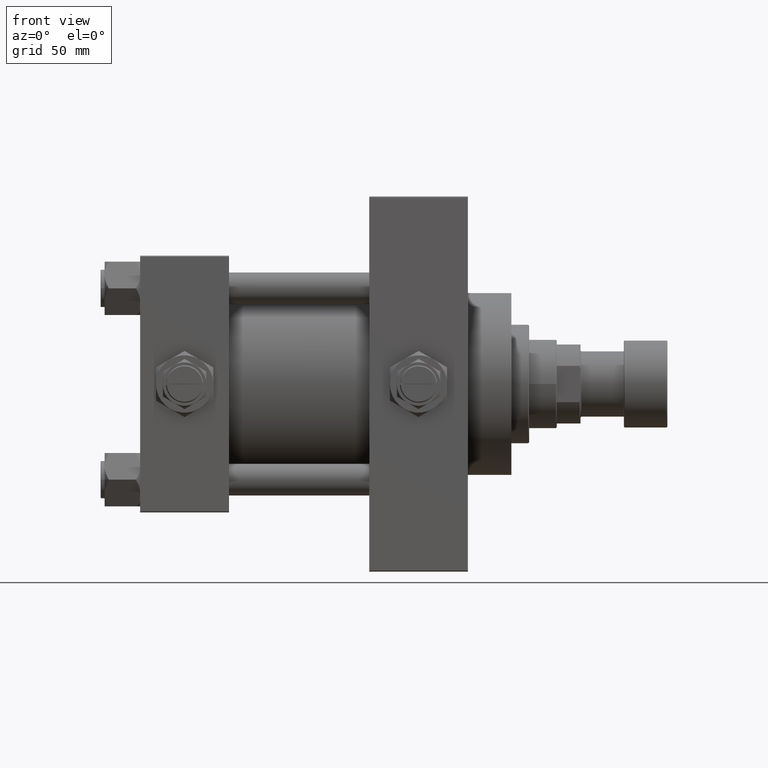
[diagram: clean part render]
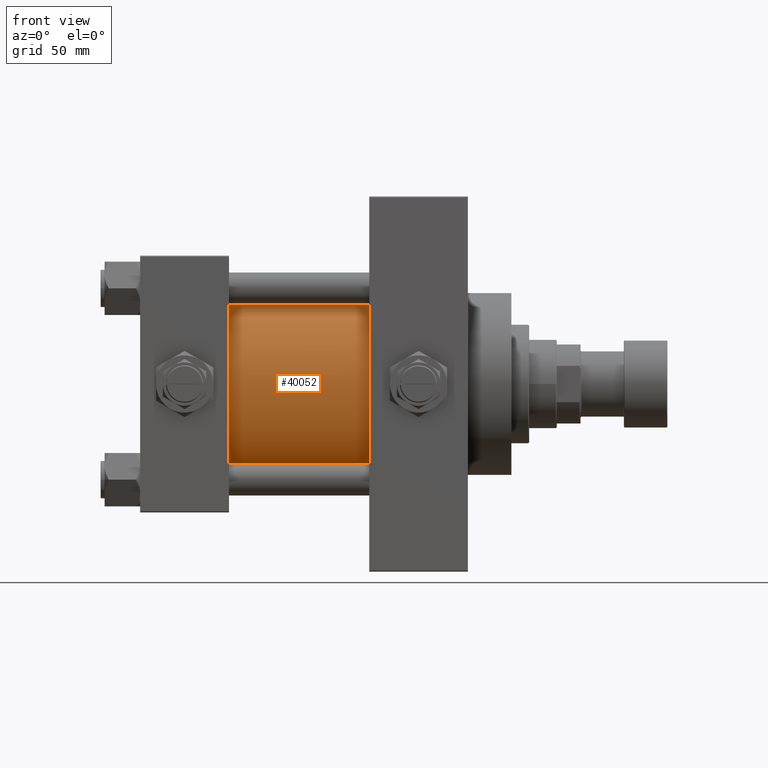
[diagram: same view with one face highlighted and labeled with its STEP entity id]
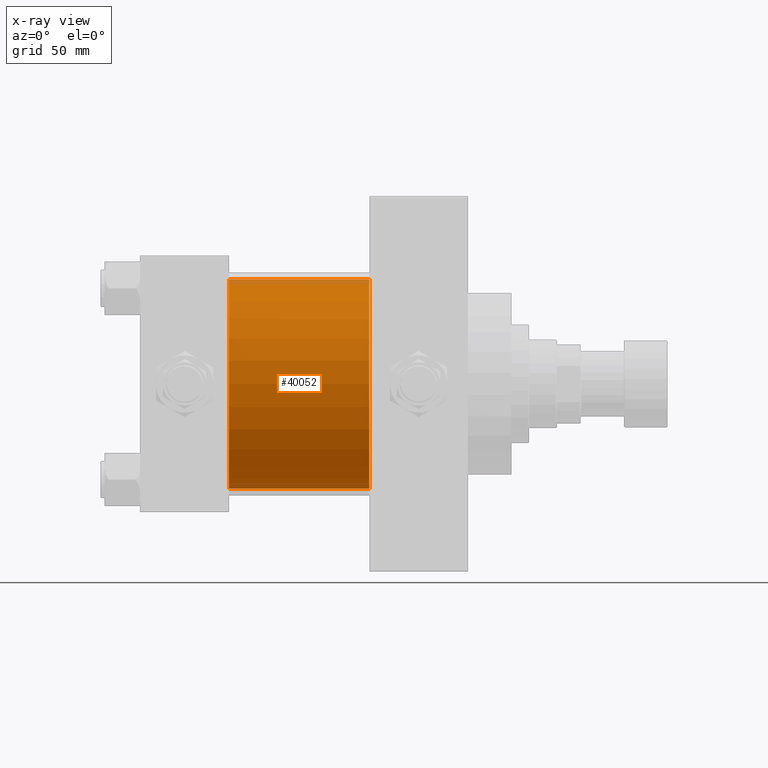
[diagram: x-ray of the same camera — body ghosted, the highlighted face saturated]
A machine part, front view. The second image highlights one B-rep face of the part: STEP entity #40052.
The next image is the same camera in x-ray: the body ghosted, the highlighted face saturated — about 5% of this face is hidden behind the body in this view.
In plain terms, the highlighted cylindrical surface (partial cylindrical patch) has radius 53 mm, axis along (-1, -0, -0).
Its self-contained STEP definition (entity closure, byte-faithful):
#1132 = ORIENTED_EDGE ( 'NONE', *, *, #16341, .F. ) ;
#4428 = DIRECTION ( 'NONE',  ( -1.000000000000000000, -0.000000000000000000, -0.000000000000000000 ) ) ;
#5711 = CIRCLE ( 'NONE', #16236, 53.00000000000000711 ) ;
#5794 = CYLINDRICAL_SURFACE ( 'NONE', #43803, 53.00000000000000711 ) ;
#6020 = CARTESIAN_POINT ( 'NONE',  ( 45.00000000000000000, 3.888542821515762466E-15, -53.00000000000000711 ) ) ;
#8147 = EDGE_CURVE ( 'NONE', #9688, #46931, #38721, .T. ) ;
#9100 = EDGE_CURVE ( 'NONE', #46931, #37026, #30275, .T. ) ;
#9109 = DIRECTION ( 'NONE',  ( 0.000000000000000000, 0.000000000000000000, 1.000000000000000000 ) ) ;
#9360 = CARTESIAN_POINT ( 'NONE',  ( 115.9999999999999858, -2.602085213965210642E-15, 0.000000000000000000 ) ) ;
#9688 = VERTEX_POINT ( 'NONE', #23234 ) ;
#10094 = VECTOR ( 'NONE', #47451, 1000.000000000000000 ) ;
#10581 = DIRECTION ( 'NONE',  ( 0.000000000000000000, 0.000000000000000000, -1.000000000000000000 ) ) ;
#10968 = DIRECTION ( 'NONE',  ( 1.000000000000000000, -0.000000000000000000, 0.000000000000000000 ) ) ;
#13660 = CARTESIAN_POINT ( 'NONE',  ( 115.9999999999999858, 3.888542821515762466E-15, -53.00000000000000711 ) ) ;
#16236 = AXIS2_PLACEMENT_3D ( 'NONE', #26330, #18195, #10581 ) ;
#16341 = EDGE_CURVE ( 'NONE', #32787, #37026, #31989, .T. ) ;
#18195 = DIRECTION ( 'NONE',  ( 1.000000000000000000, 0.000000000000000000, 0.000000000000000000 ) ) ;
#19342 = ORIENTED_EDGE ( 'NONE', *, *, #9100, .T. ) ;
#20514 = AXIS2_PLACEMENT_3D ( 'NONE', #33584, #10968, #45239 ) ;
#21591 = CARTESIAN_POINT ( 'NONE',  ( 115.9999999999999858, 3.888542821515762466E-15, -53.00000000000000711 ) ) ;
#23234 = CARTESIAN_POINT ( 'NONE',  ( 115.9999999999999858, -2.602085213965210642E-15, 53.00000000000000711 ) ) ;
#23252 = ORIENTED_EDGE ( 'NONE', *, *, #42916, .F. ) ;
#23721 = CARTESIAN_POINT ( 'NONE',  ( 115.9999999999999858, -2.602085213965210642E-15, 53.00000000000000711 ) ) ;
#24859 = DIRECTION ( 'NONE',  ( -1.000000000000000000, -0.000000000000000000, -0.000000000000000000 ) ) ;
#26330 = CARTESIAN_POINT ( 'NONE',  ( 115.9999999999999858, -2.602085213965210642E-15, 0.000000000000000000 ) ) ;
#30275 = CIRCLE ( 'NONE', #20514, 53.00000000000000711 ) ;
#31989 = LINE ( 'NONE', #13660, #10094 ) ;
#31996 = FACE_OUTER_BOUND ( 'NONE', #42790, .T. ) ;
#32787 = VERTEX_POINT ( 'NONE', #21591 ) ;
#33584 = CARTESIAN_POINT ( 'NONE',  ( 45.00000000000000000, -2.602085213965210642E-15, 0.000000000000000000 ) ) ;
#34277 = ORIENTED_EDGE ( 'NONE', *, *, #8147, .T. ) ;
#37026 = VERTEX_POINT ( 'NONE', #6020 ) ;
#37515 = VECTOR ( 'NONE', #4428, 1000.000000000000000 ) ;
#37941 = CARTESIAN_POINT ( 'NONE',  ( 45.00000000000000000, -2.602085213965210642E-15, 53.00000000000000711 ) ) ;
#38721 = LINE ( 'NONE', #23721, #37515 ) ;
#40052 = ADVANCED_FACE ( 'NONE', ( #31996 ), #5794, .T. ) ;
#42790 = EDGE_LOOP ( 'NONE', ( #1132, #23252, #34277, #19342 ) ) ;
#42916 = EDGE_CURVE ( 'NONE', #9688, #32787, #5711, .T. ) ;
#43803 = AXIS2_PLACEMENT_3D ( 'NONE', #9360, #24859, #9109 ) ;
#45239 = DIRECTION ( 'NONE',  ( 0.000000000000000000, 0.000000000000000000, 1.000000000000000000 ) ) ;
#46931 = VERTEX_POINT ( 'NONE', #37941 ) ;
#47451 = DIRECTION ( 'NONE',  ( -1.000000000000000000, -0.000000000000000000, -0.000000000000000000 ) ) ;